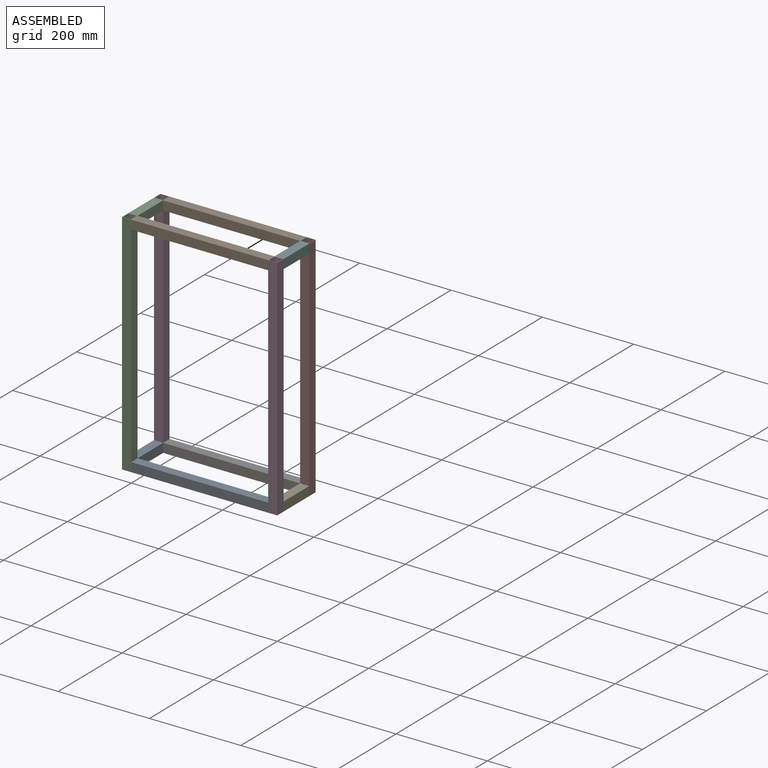
[diagram: assembled view]
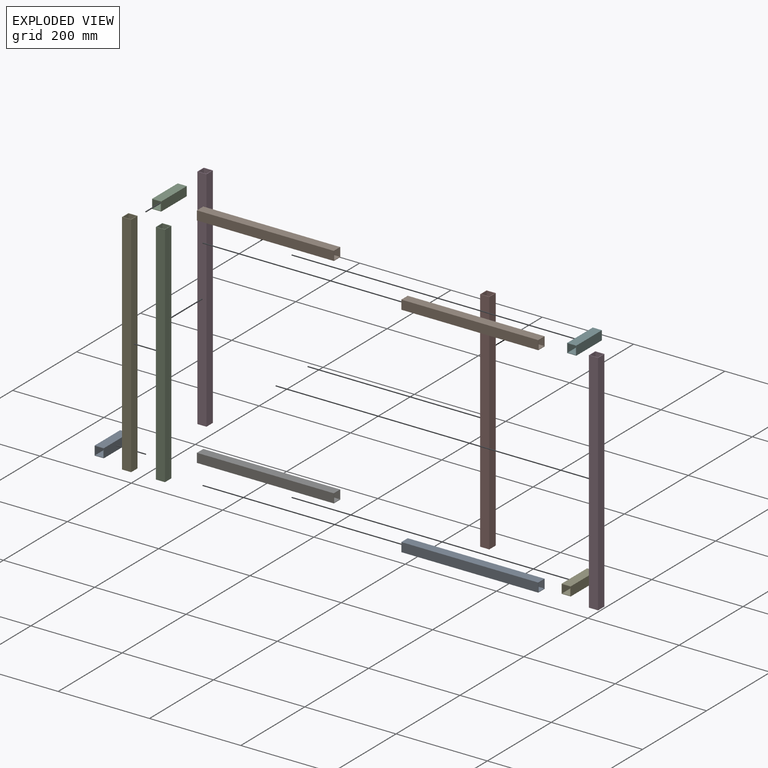
[diagram: exploded view]
GUIDED TOUR — MATED ASSEMBLY (Onshape document 2a41244f44f6a8a69559b8c5, AutoMate assembly 2a41244f44f6a8a69559b8c5_5d259f80183d942b531c8155_185a4a475fd962abfe116204_default)

This assembly has 13 components, labeled P0..P12 below (a component is one placed occurrence of a part; the same part can appear more than once), held together by 11 mates. A mate is a constraint between two components; its type names the relative motion it leaves free:
  FASTENED — locks the two components together rigidly (no relative motion).
Axis/direction vectors are unit vectors and 'through' points are millimeter coordinates, both in the assembly's world frame.

MATES
  1. FASTENED "Fastened 7": P4 <-> P3, direction (0.000, -1.000, 0.000) through (94.84, 41.28, -8.09) mm
  2. FASTENED "Fastened 8": P0 <-> P12, direction (0.000, -1.000, 0.000) through (-225.16, 41.28, -8.09) mm
  3. FASTENED "Fastened 4": P6 <-> P11, direction (-1.000, 0.000, 0.000) through (-215.16, 131.28, -8.09) mm
  4. FASTENED "Fastened 9": P5 <-> P3, direction (0.000, -1.000, 0.000) through (94.84, 41.28, 491.91) mm
  5. FASTENED "Fastened 3": P9 <-> P11, direction (-1.000, 0.000, 0.000) through (-215.16, 131.28, 491.91) mm
  6. FASTENED "Fastened 1": P1 <-> P12, direction (-1.000, 0.000, 0.000) through (-215.16, 31.28, 491.91) mm
  7. FASTENED "Fastened 5": P3 <-> P8, direction (-1.000, 0.000, 0.000) through (84.84, 31.28, -8.09) mm
  8. FASTENED "Fastened 2": P8 <-> P12, direction (-1.000, 0.000, 0.000) through (-215.16, 31.28, -8.09) mm
  9. FASTENED "Fastened 10": P10 <-> P12, direction (0.000, -1.000, 0.000) through (-225.16, 41.28, 491.91) mm
  10. FASTENED "Fastened 6": P7 <-> P6, direction (-1.000, 0.000, 0.000) through (84.84, 131.28, -8.09) mm
  11. FASTENED "Fastened 11": P10 <-> P11, direction (0.000, 1.000, 0.000) through (-225.16, 121.28, 491.91) mm

ASSEMBLY ORDER
  1. P12 — the base component [order heuristic]
  2. P2 — core [order heuristic]
  3. P10 [order verified]
  4. P11 [order verified]
  5. P9 [order verified]
  6. P6 [order verified]
  7. P1 [order verified]
  8. P8 [order verified]
  9. P3 [order verified]
  10. P4 [order verified]
  11. P7 [order verified]
  12. P5 [order verified]
  13. P0 [order verified]
Order-tag legend:
  [order verified] — this step's position reverses a verified removal order: the component was checked to insert without passing through the ones already placed.
  [order heuristic] — the first 2 components form the assembly's core: parts whose collision-free extraction could not be verified, listed in mate-graph order.

Of the 13 components, 13 carry the full construction recipe — the FeatureScript program that regenerates the part's solid from scratch; the rest are supplied as boundary geometry only.
Because this assembly has more than 12 components, the tour below covers the 12 most significant ones individually (every recipe-attached component first, then the largest by part volume), in assembly order; the remaining 1 are summarized together in a grouped section at the end.
Each toured component is shown spotlighted twice — in the assembled view, then in the exploded view, where a leader line traces a displaced component back to its assembled socket (saturated green if recipe-attached, orange if geometry-only; every other component desaturated gray) — followed by its recipe or geometry summary and the mates that hold it.
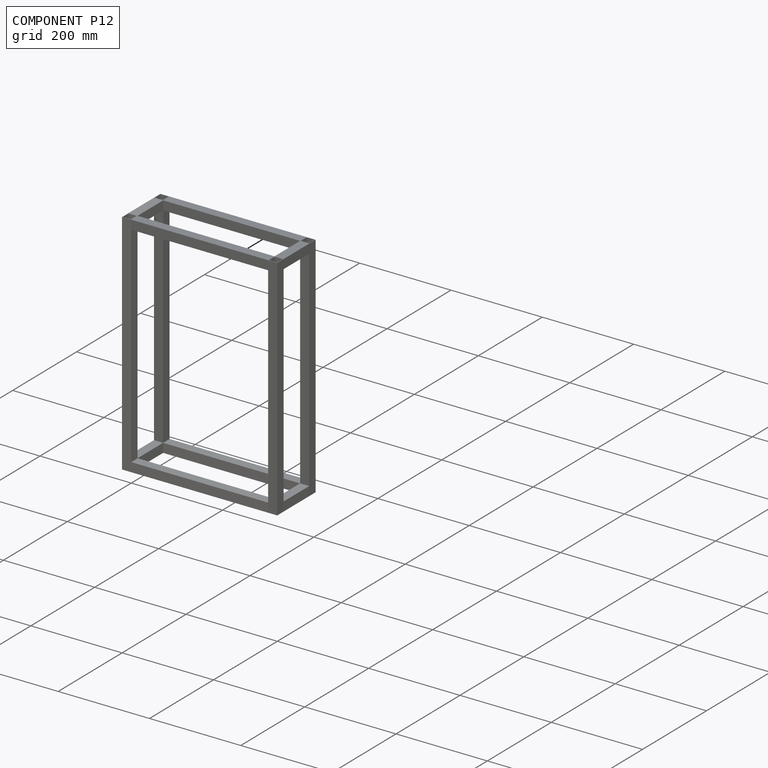
[diagram: component P12 — assembled]
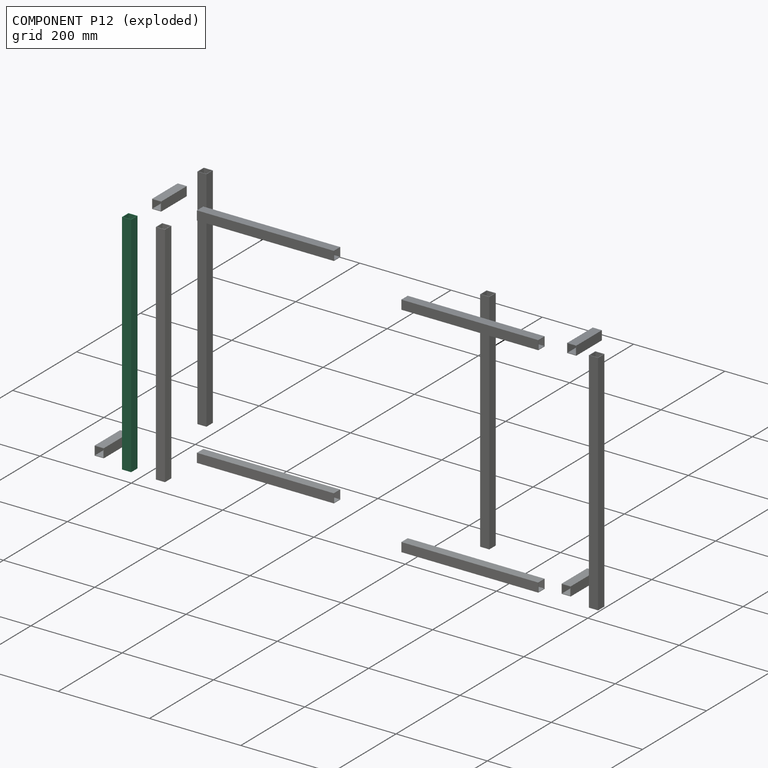
[diagram: component P12 — exploded]
COMPONENT P12 — same part as P2 (CADFS 00951037); its construction recipe is shown at P2.
Held by: FASTENED mate "Fastened 8" to P0; FASTENED mate "Fastened 1" to P1; FASTENED mate "Fastened 2" to P8; FASTENED mate "Fastened 10" to P10.
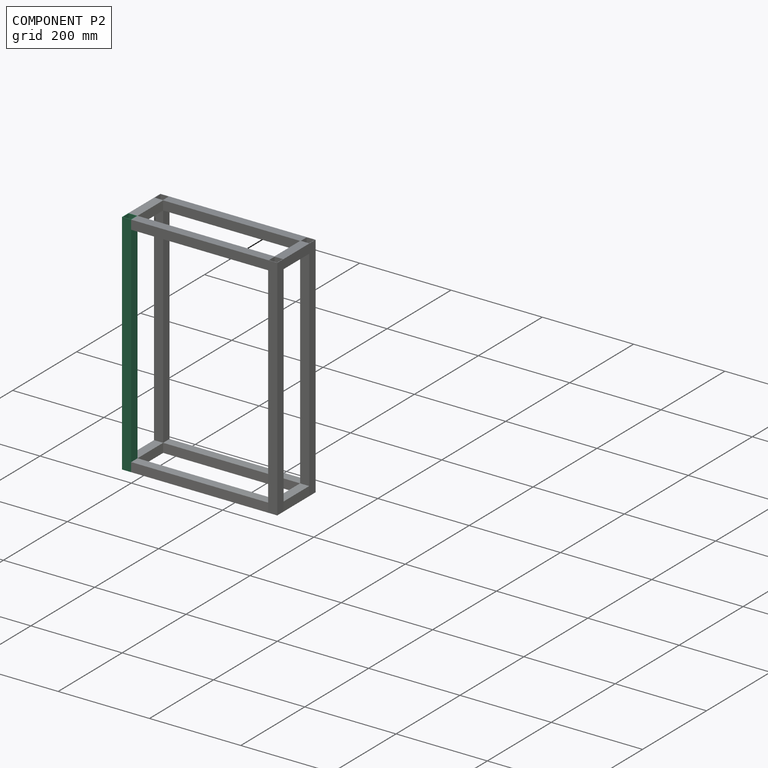
[diagram: component P2 — assembled]
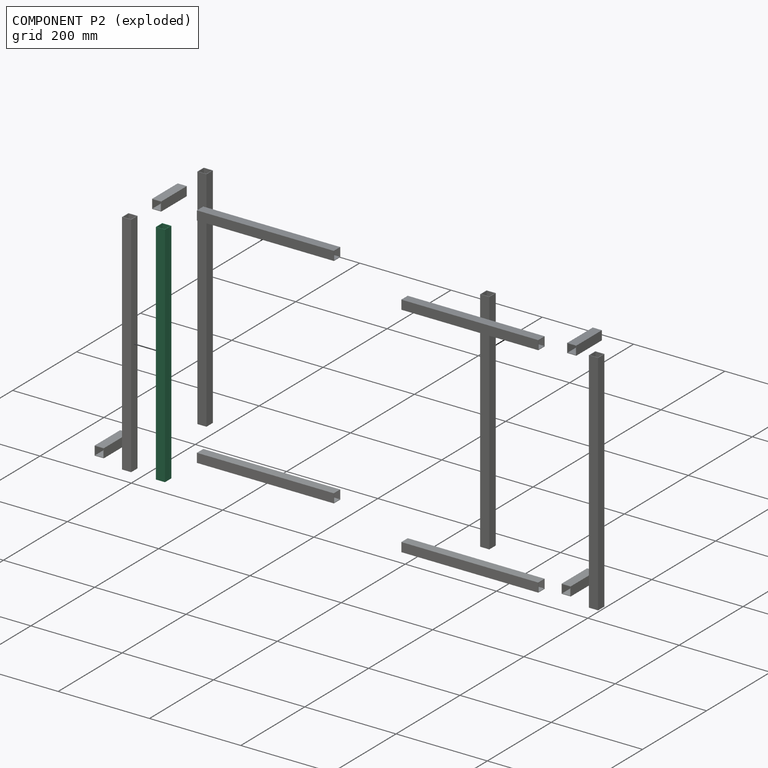
[diagram: component P2 — exploded]
COMPONENT P2 — recipe-attached (CADFS 00951037, mesh-verified: the recipe's output STEP matches this component's geometry to below the mesh-comparison resolution (tessellation chordal tolerance ~0.751 mm)).
Held by: no mates (free).
Construction recipe (FeatureScript — the CAD program that rebuilds this solid; sketch coordinates are in the units given by the * unit suffixes, e.g. mm):

FeatureScript 1511;
import(path : "onshape/std/geometry.fs", version : "1511.0");
import(path : "onshape/std/common.fs", version : "1511.0");
const mm = millimeter;
const VERTEX = EntityType.VERTEX;
const EDGE = EntityType.EDGE;
const FACE = EntityType.FACE;
const BODY = EntityType.BODY;
function v(x, y){return vector(x, y);}
function OD(order){return orderDisambiguation(order);}
function OSD(set){return originalSetDisambiguation(set);}
function TD(topology){return topologyDisambiguation(topology);}
function TDD(query){return trueDependencyDisambiguation(query);}
function sQuery(a, b, c) {return sketchEntityQuery(a, b, c);}

annotation { "Feature Type Name" : "Feature", "Feature Type Description" : "" }
export const myFeature = defineFeature(function(context is Context, id is Id, definition is map)
    precondition{}
    {
        {
            var Q0;
            Q0=qCreatedBy(makeId("Top.planeOp"),FACE);
            var sketch = newSketch(context, id + "F0", { "sketchPlane" : qUnion([Q0])});
            skLineSegment(sketch, "E0.bottom", {"start": v(10, 10) * mm, "end": v(-10, 10) * mm});
            skLineSegment(sketch, "E0.top", {"start": v(10, -10) * mm, "end": v(-10, -10) * mm});
            skLineSegment(sketch, "E0.left", {"start": v(10, 10) * mm, "end": v(10, -10) * mm});
            skLineSegment(sketch, "E0.right", {"start": v(-10, 10) * mm, "end": v(-10, -10) * mm});
            skPoint(sketch, "E0.middle", {"position": v(0, 0) * mm});
            skLineSegment(sketch, "E1.bottom", {"start": v(9, 9) * mm, "end": v(-9, 9) * mm});
            skLineSegment(sketch, "E1.top", {"start": v(9, -9) * mm, "end": v(-9, -9) * mm});
            skLineSegment(sketch, "E1.left", {"start": v(9, 9) * mm, "end": v(9, -9) * mm});
            skLineSegment(sketch, "E1.right", {"start": v(-9, 9) * mm, "end": v(-9, -9) * mm});
            skSolve(sketch);
        }
        {
            var Q0;
            Q0=makeQuery(id+"F0.imprint","IMPRINT",FACE,{"disambiguationData":[TD([[makeQuery(id+"F0.imprint","IMPRINT",EDGE,{"derivedFrom":sQuery(id+"F0.wireOp",EDGE,"E0.bottom")}),1.0]])]});
            extrude(context, id + "F1", {"entities" : qUnion([Q0]), "depth" : 500 * mm, "offsetDistance" : 25 * mm});
        }
    });
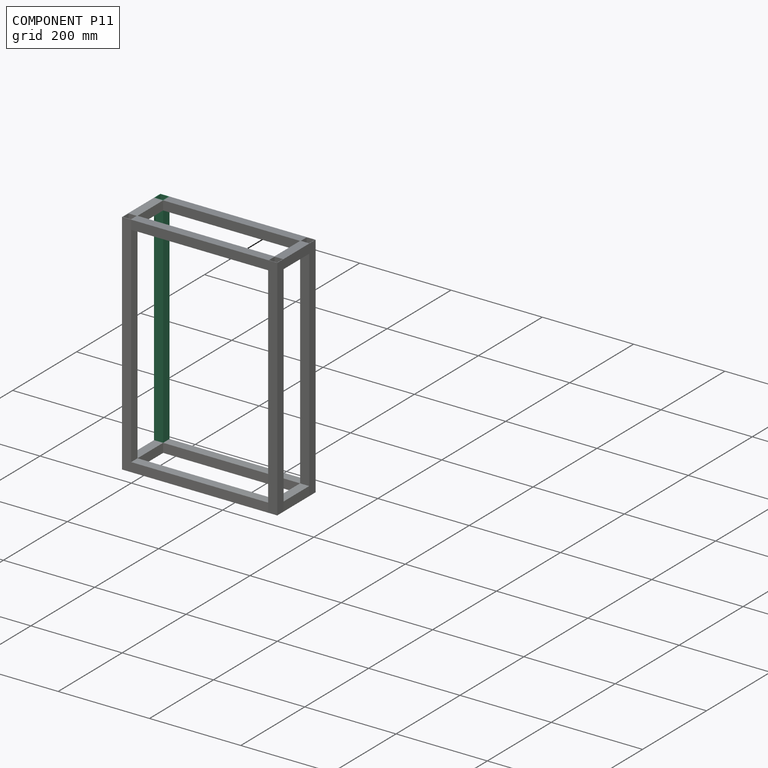
[diagram: component P11 — assembled]
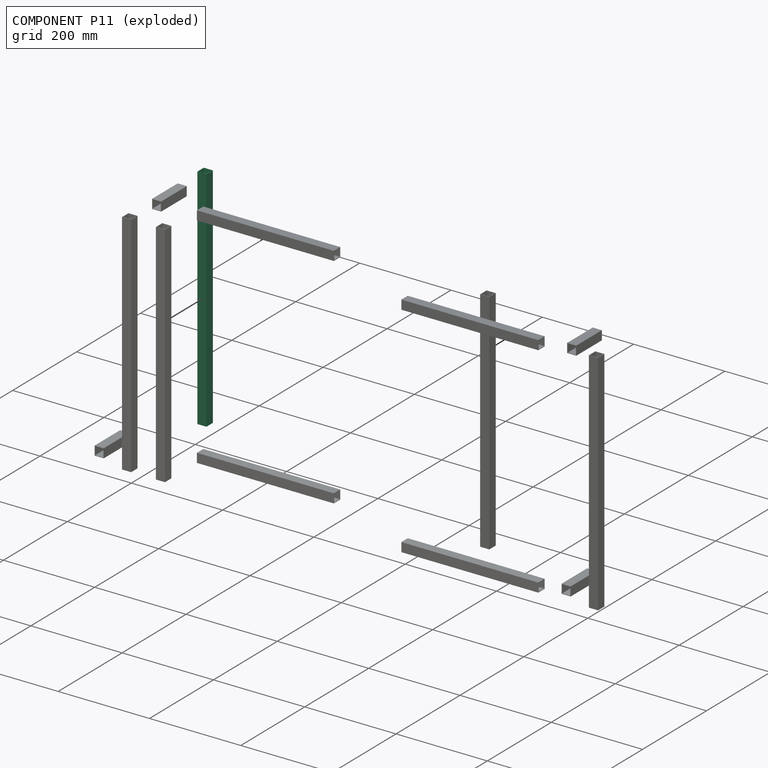
[diagram: component P11 — exploded]
COMPONENT P11 — same part as P2 (CADFS 00951037); its construction recipe is shown at P2.
Held by: FASTENED mate "Fastened 4" to P6; FASTENED mate "Fastened 3" to P9; FASTENED mate "Fastened 11" to P10.
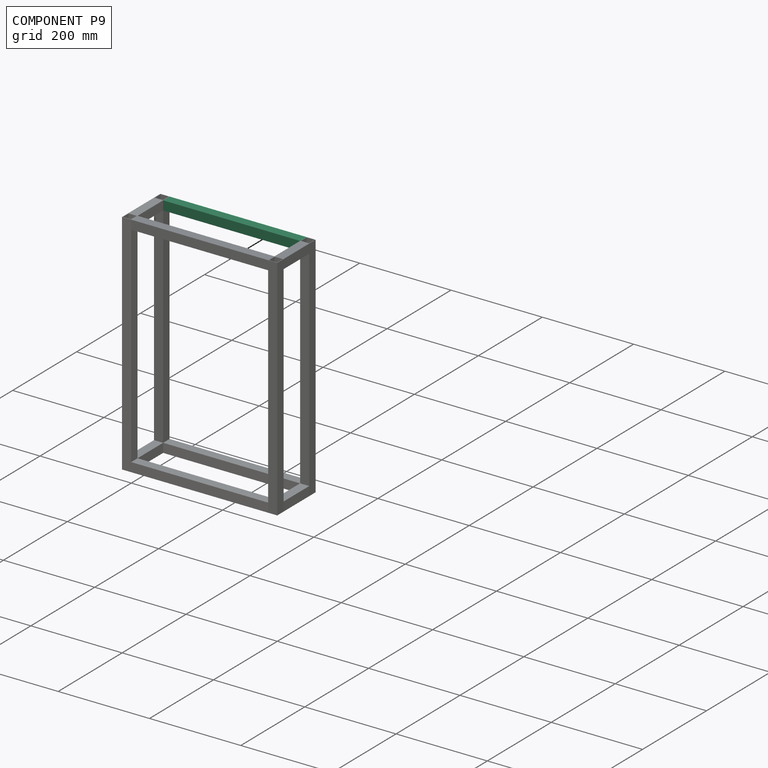
[diagram: component P9 — assembled]
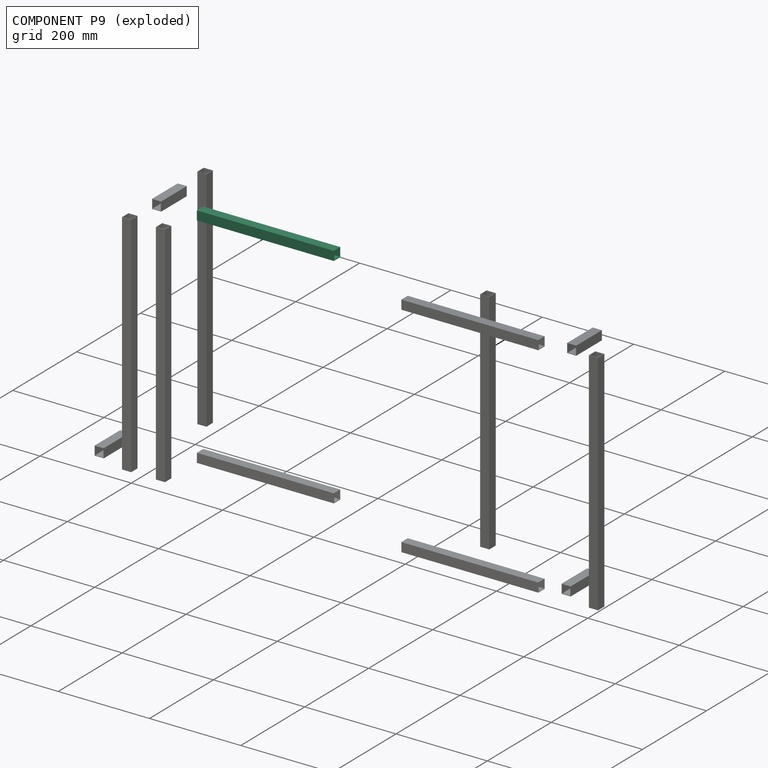
[diagram: component P9 — exploded]
COMPONENT P9 — same part as P1 (CADFS 00951039); its construction recipe is shown at P1.
Held by: FASTENED mate "Fastened 3" to P11.
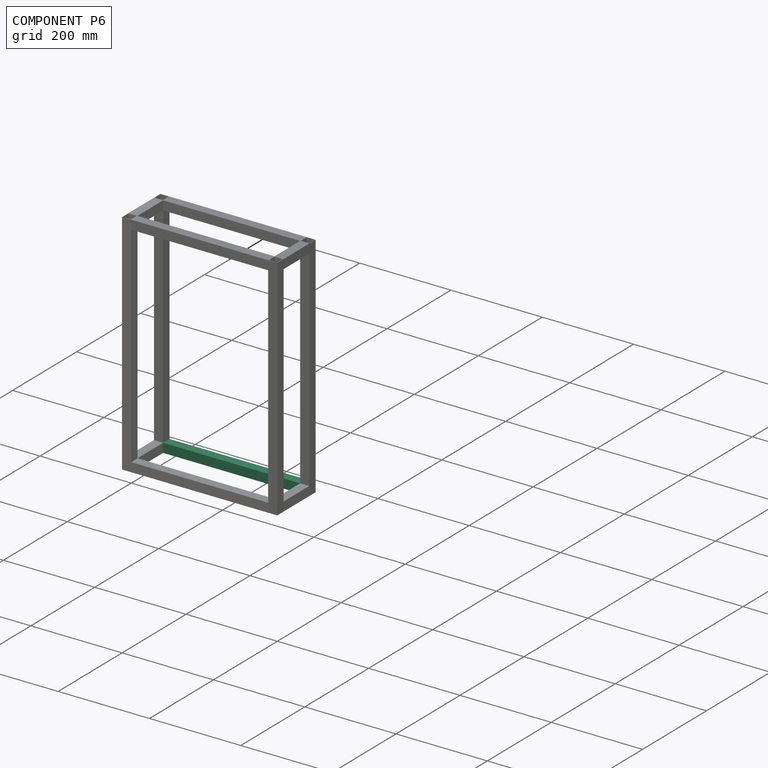
[diagram: component P6 — assembled]
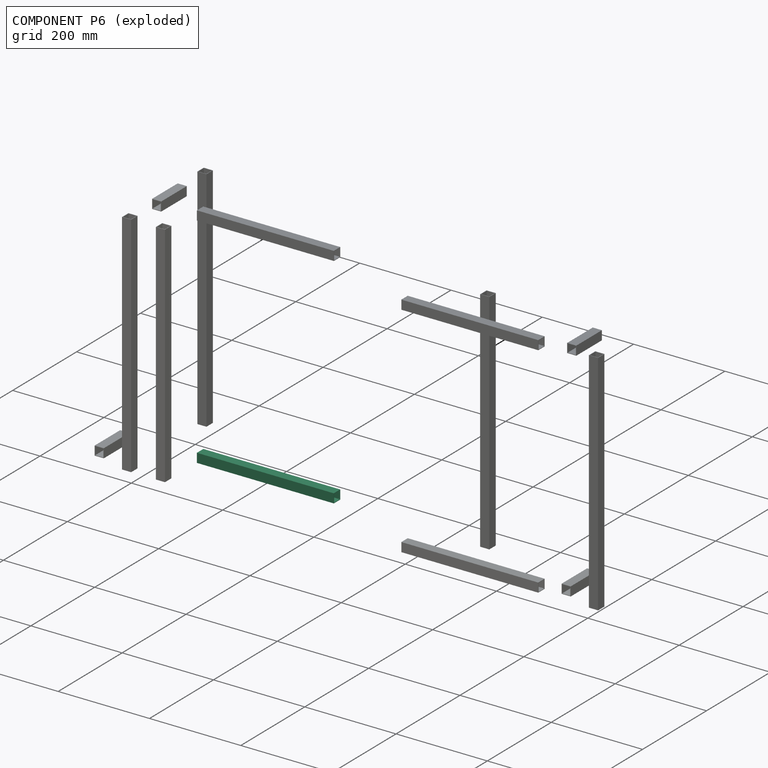
[diagram: component P6 — exploded]
COMPONENT P6 — same part as P1 (CADFS 00951039); its construction recipe is shown at P1.
Held by: FASTENED mate "Fastened 4" to P11; FASTENED mate "Fastened 6" to P7.
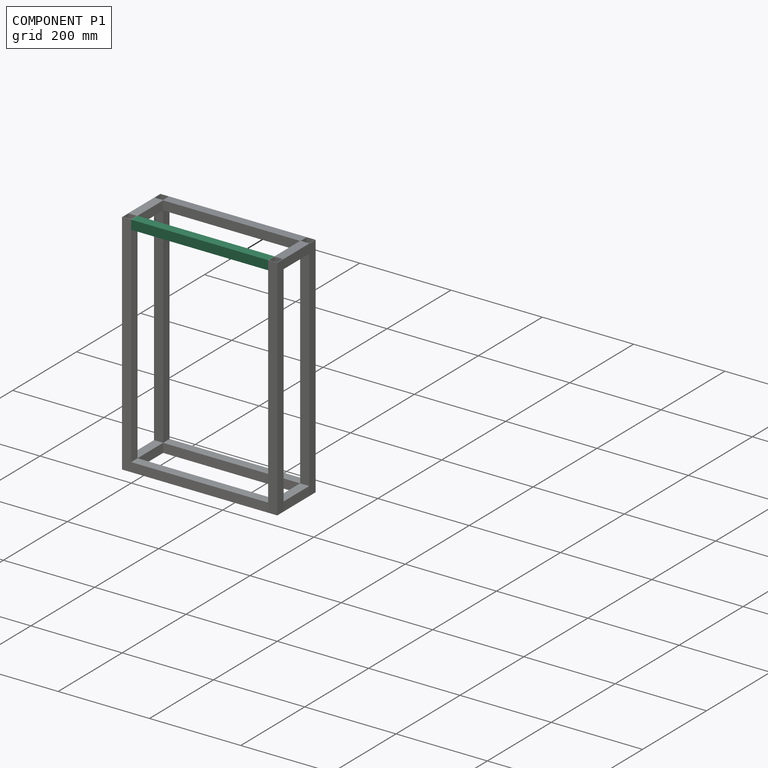
[diagram: component P1 — assembled]
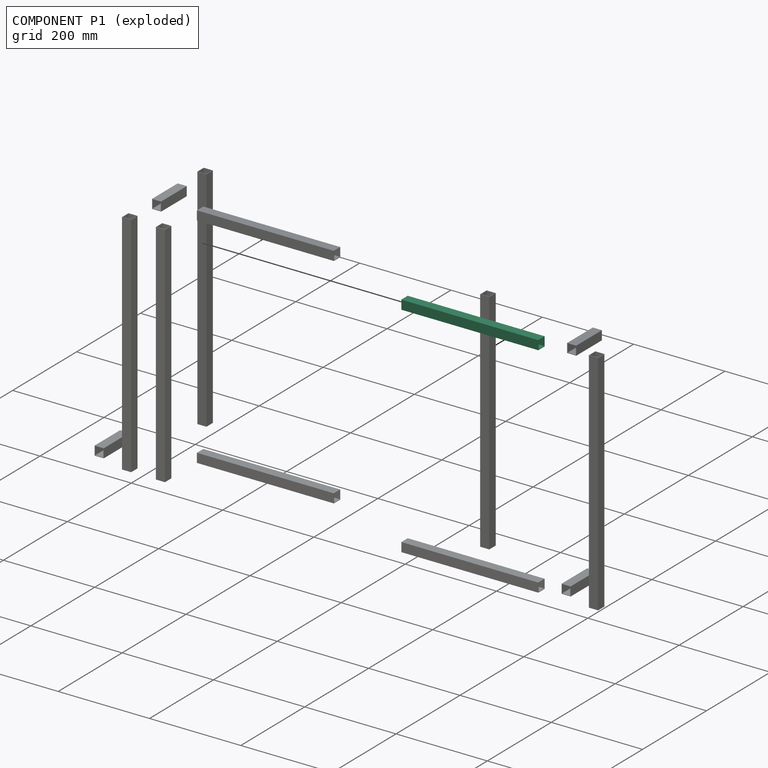
[diagram: component P1 — exploded]
COMPONENT P1 — recipe-attached (CADFS 00951039, mesh-verified: the recipe's output STEP matches this component's geometry to below the mesh-comparison resolution (tessellation chordal tolerance ~0.452 mm)).
Held by: FASTENED mate "Fastened 1" to P12.
Construction recipe (FeatureScript — the CAD program that rebuilds this solid; sketch coordinates are in the units given by the * unit suffixes, e.g. mm):

FeatureScript 1511;
import(path : "onshape/std/geometry.fs", version : "1511.0");
import(path : "onshape/std/common.fs", version : "1511.0");
const mm = millimeter;
const VERTEX = EntityType.VERTEX;
const EDGE = EntityType.EDGE;
const FACE = EntityType.FACE;
const BODY = EntityType.BODY;
function v(x, y){return vector(x, y);}
function OD(order){return orderDisambiguation(order);}
function OSD(set){return originalSetDisambiguation(set);}
function TD(topology){return topologyDisambiguation(topology);}
function TDD(query){return trueDependencyDisambiguation(query);}
function sQuery(a, b, c) {return sketchEntityQuery(a, b, c);}

annotation { "Feature Type Name" : "Feature", "Feature Type Description" : "" }
export const myFeature = defineFeature(function(context is Context, id is Id, definition is map)
    precondition{}
    {
        {
            var Q0;
            Q0=qCreatedBy(makeId("Top.planeOp"),FACE);
            var sketch = newSketch(context, id + "F0", { "sketchPlane" : qUnion([Q0])});
            skLineSegment(sketch, "E0.bottom", {"start": v(10, 10) * mm, "end": v(-10, 10) * mm});
            skLineSegment(sketch, "E0.top", {"start": v(10, -10) * mm, "end": v(-10, -10) * mm});
            skLineSegment(sketch, "E0.left", {"start": v(10, 10) * mm, "end": v(10, -10) * mm});
            skLineSegment(sketch, "E0.right", {"start": v(-10, 10) * mm, "end": v(-10, -10) * mm});
            skPoint(sketch, "E0.middle", {"position": v(0, 0) * mm});
            skLineSegment(sketch, "E1.bottom", {"start": v(9, 9) * mm, "end": v(-9, 9) * mm});
            skLineSegment(sketch, "E1.top", {"start": v(9, -9) * mm, "end": v(-9, -9) * mm});
            skLineSegment(sketch, "E1.left", {"start": v(9, 9) * mm, "end": v(9, -9) * mm});
            skLineSegment(sketch, "E1.right", {"start": v(-9, 9) * mm, "end": v(-9, -9) * mm});
            skSolve(sketch);
        }
        {
            var Q0;
            Q0=makeQuery(id+"F0.imprint","IMPRINT",FACE,{"disambiguationData":[TD([[makeQuery(id+"F0.imprint","IMPRINT",EDGE,{"derivedFrom":sQuery(id+"F0.wireOp",EDGE,"E0.bottom")}),1.0]])]});
            extrude(context, id + "F1", {"entities" : qUnion([Q0]), "depth" : 300 * mm, "offsetDistance" : 25 * mm});
        }
    });
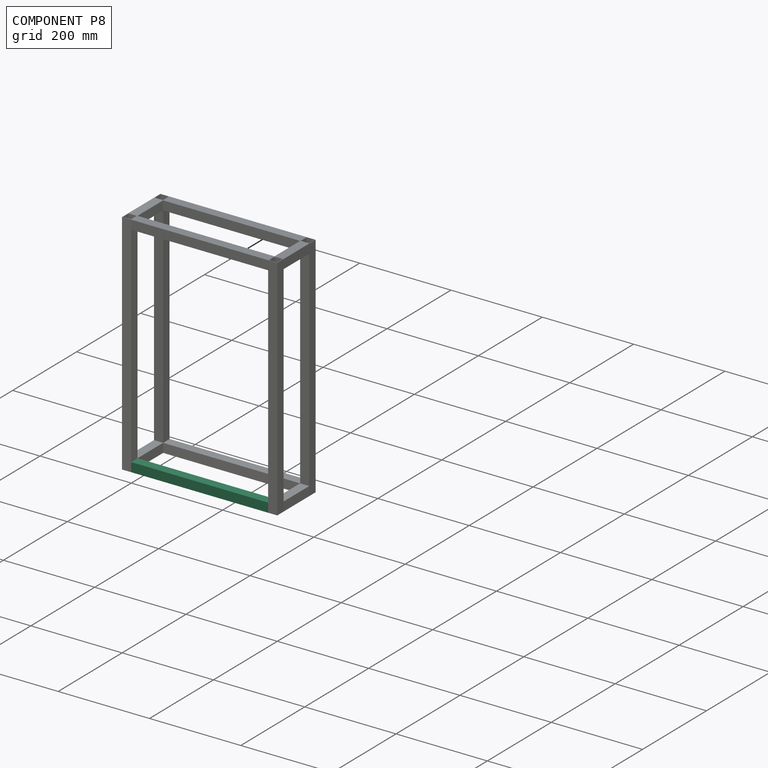
[diagram: component P8 — assembled]
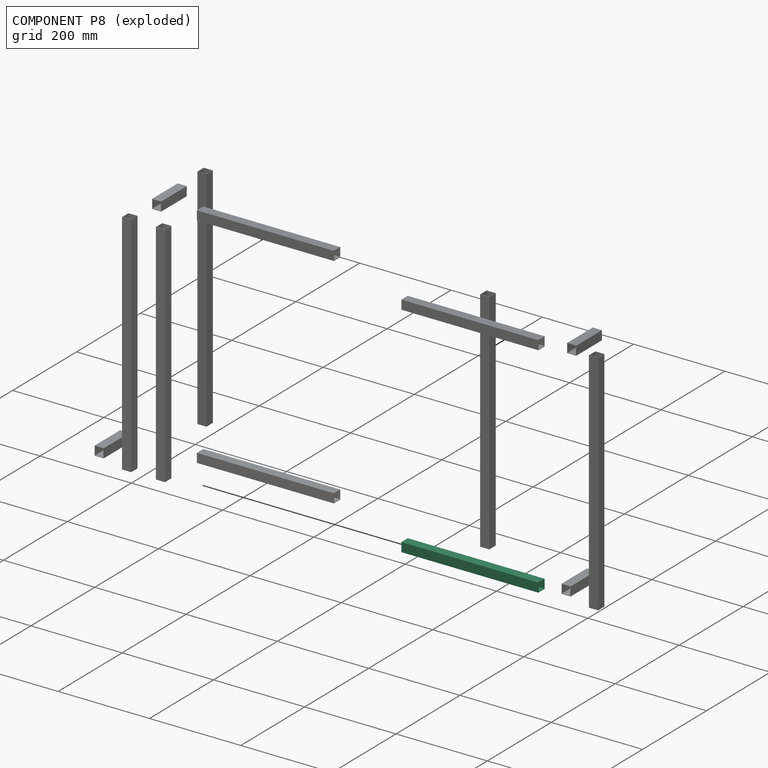
[diagram: component P8 — exploded]
COMPONENT P8 — same part as P1 (CADFS 00951039); its construction recipe is shown at P1.
Held by: FASTENED mate "Fastened 5" to P3; FASTENED mate "Fastened 2" to P12.
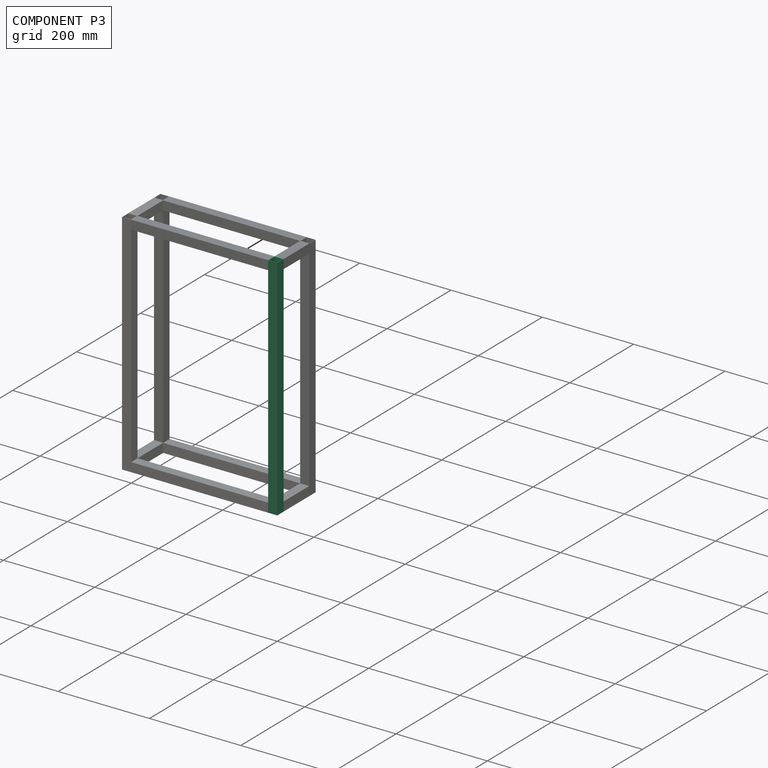
[diagram: component P3 — assembled]
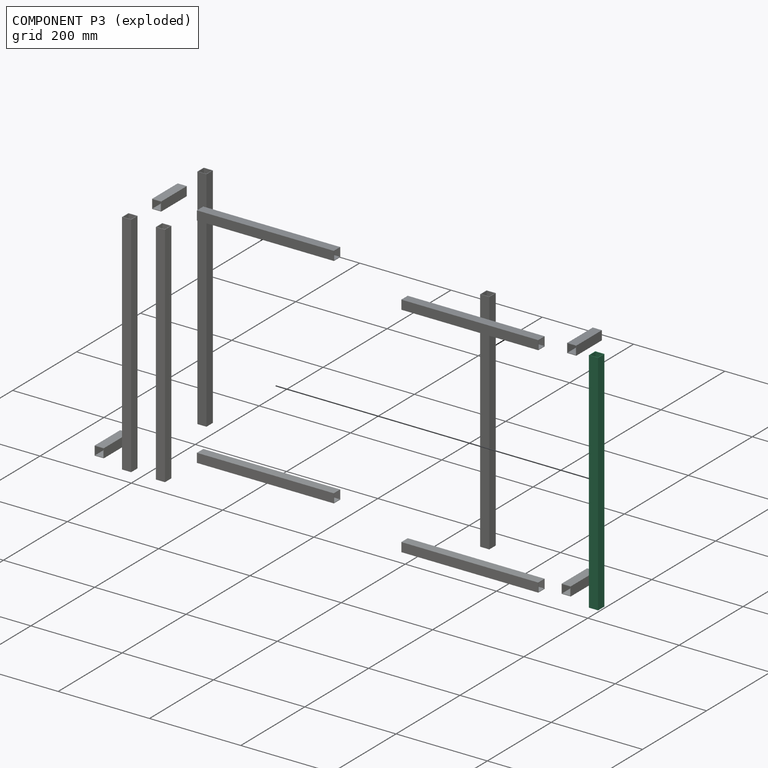
[diagram: component P3 — exploded]
COMPONENT P3 — same part as P2 (CADFS 00951037); its construction recipe is shown at P2.
Held by: FASTENED mate "Fastened 7" to P4; FASTENED mate "Fastened 9" to P5; FASTENED mate "Fastened 5" to P8.
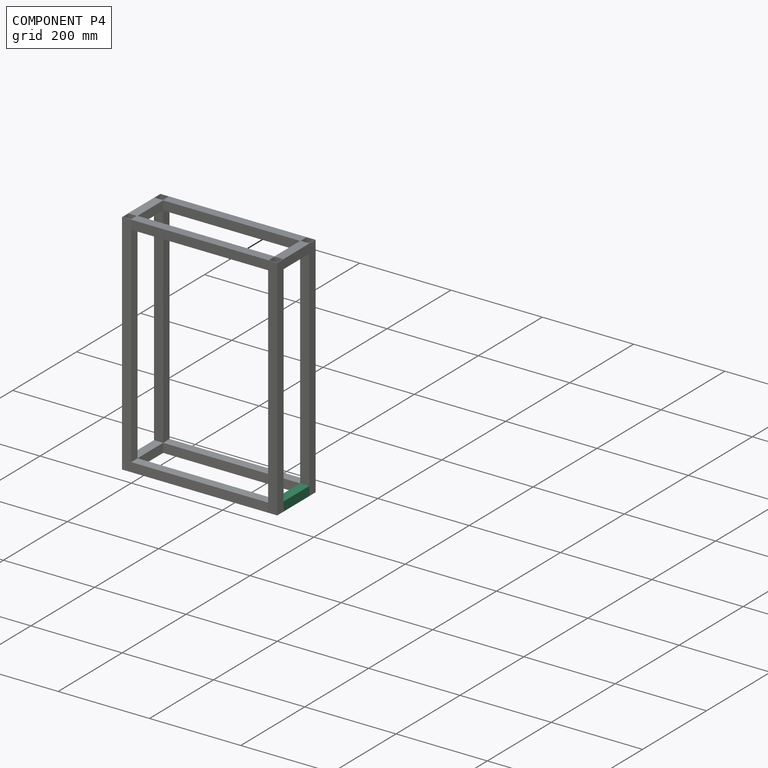
[diagram: component P4 — assembled]
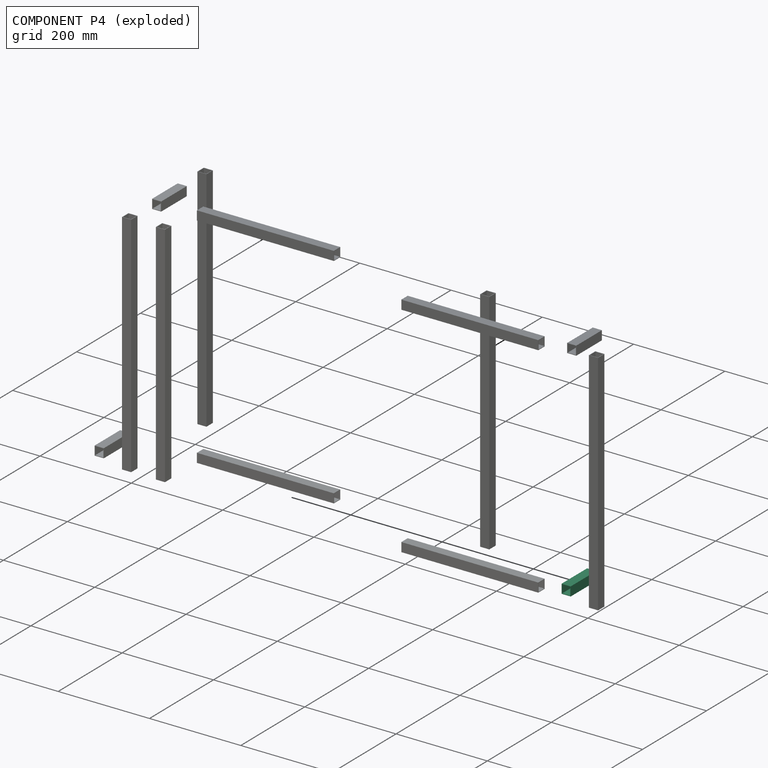
[diagram: component P4 — exploded]
COMPONENT P4 — same part as P0 (CADFS 00951038); its construction recipe is shown at P0.
Held by: FASTENED mate "Fastened 7" to P3.
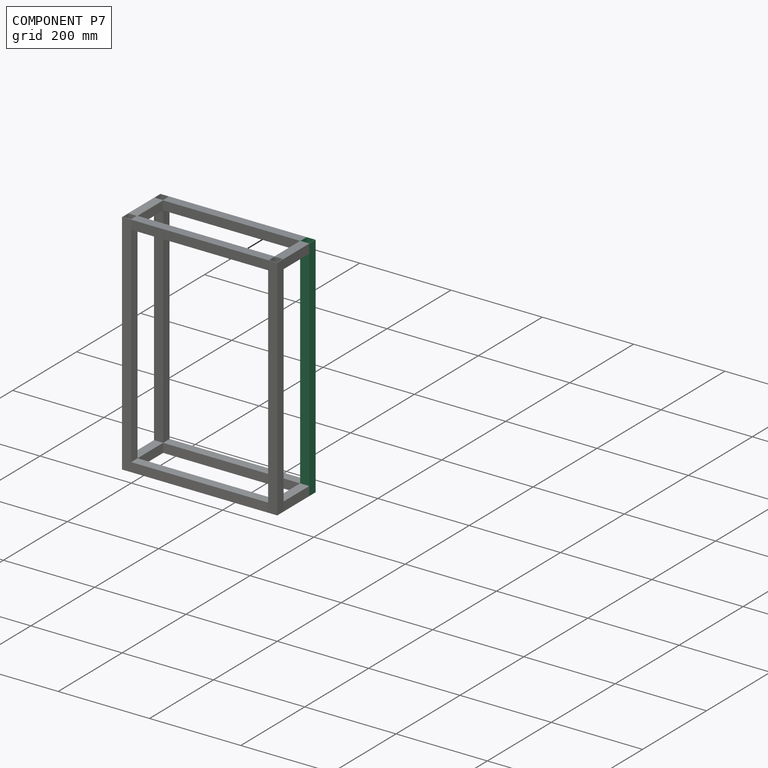
[diagram: component P7 — assembled]
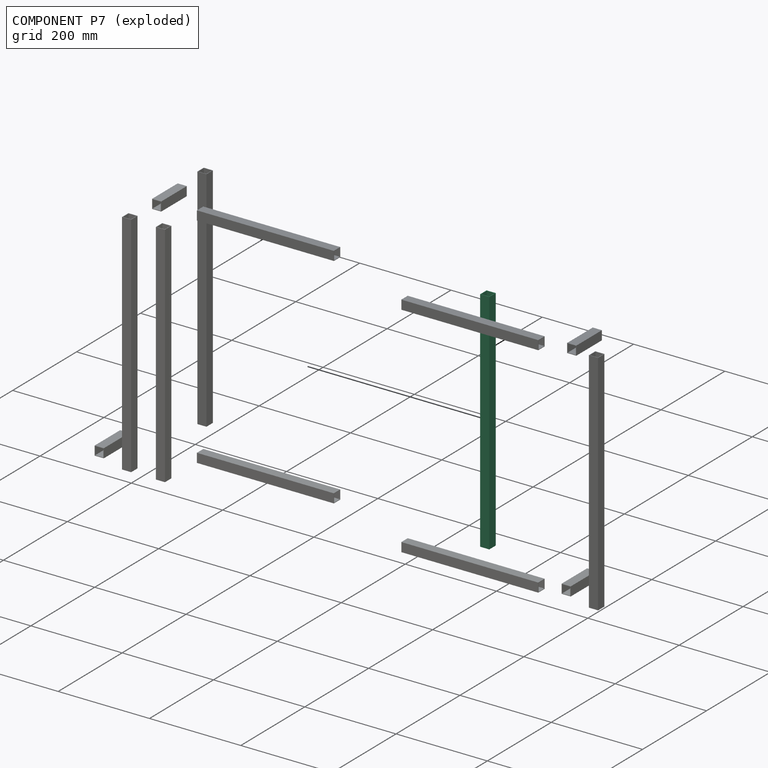
[diagram: component P7 — exploded]
COMPONENT P7 — same part as P2 (CADFS 00951037); its construction recipe is shown at P2.
Held by: FASTENED mate "Fastened 6" to P6.
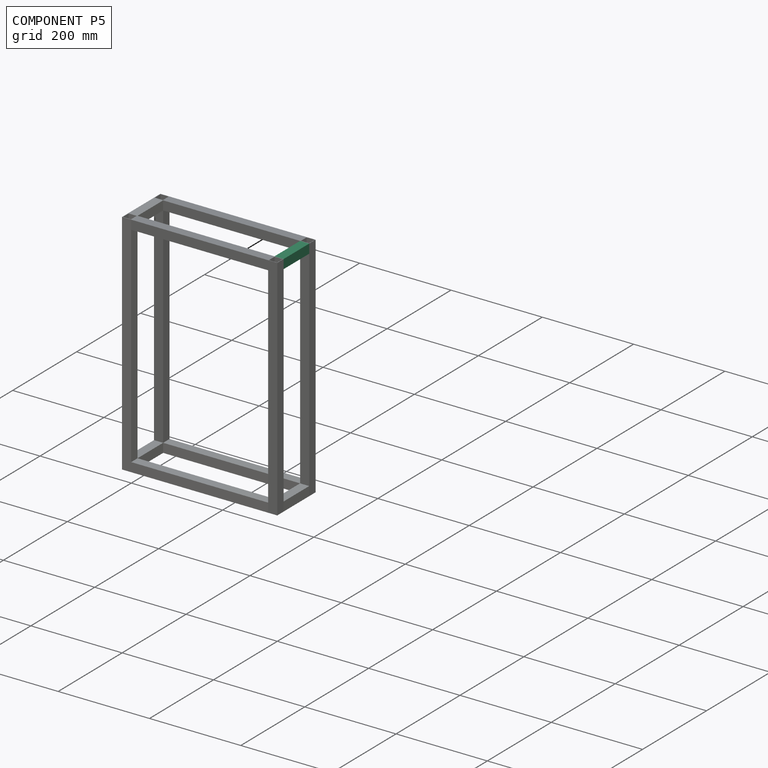
[diagram: component P5 — assembled]
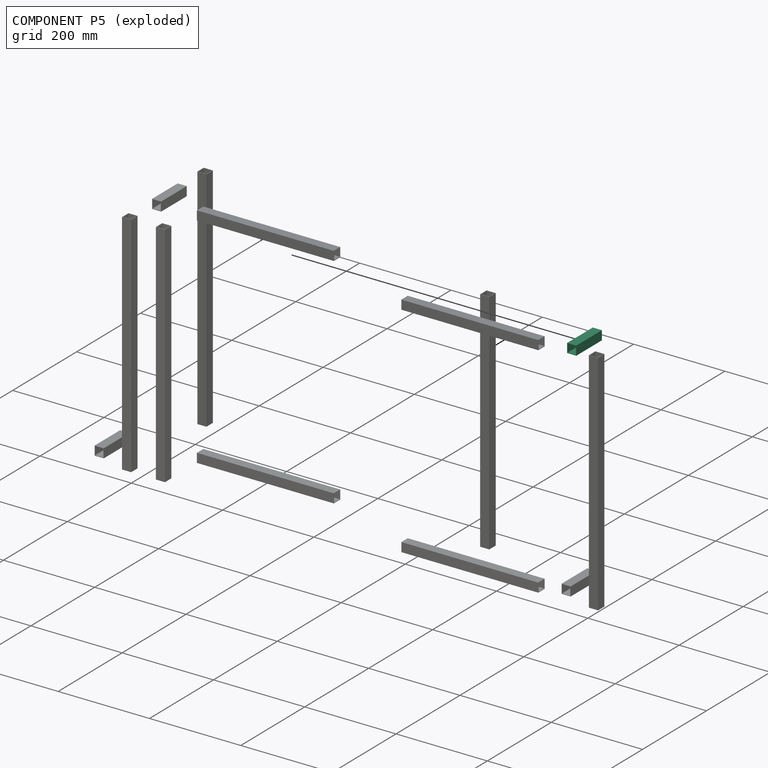
[diagram: component P5 — exploded]
COMPONENT P5 — same part as P0 (CADFS 00951038); its construction recipe is shown at P0.
Held by: FASTENED mate "Fastened 9" to P3.
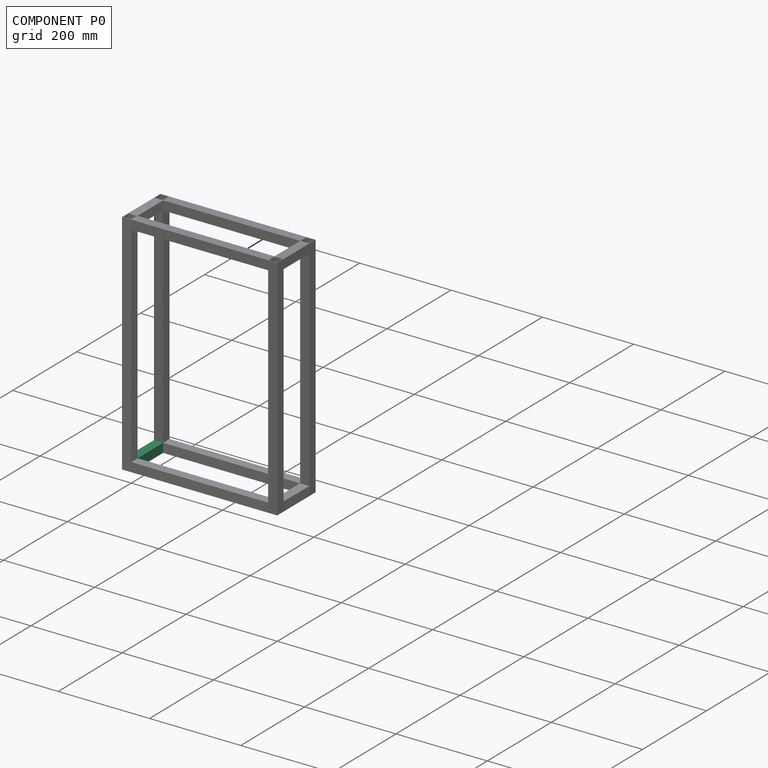
[diagram: component P0 — assembled]
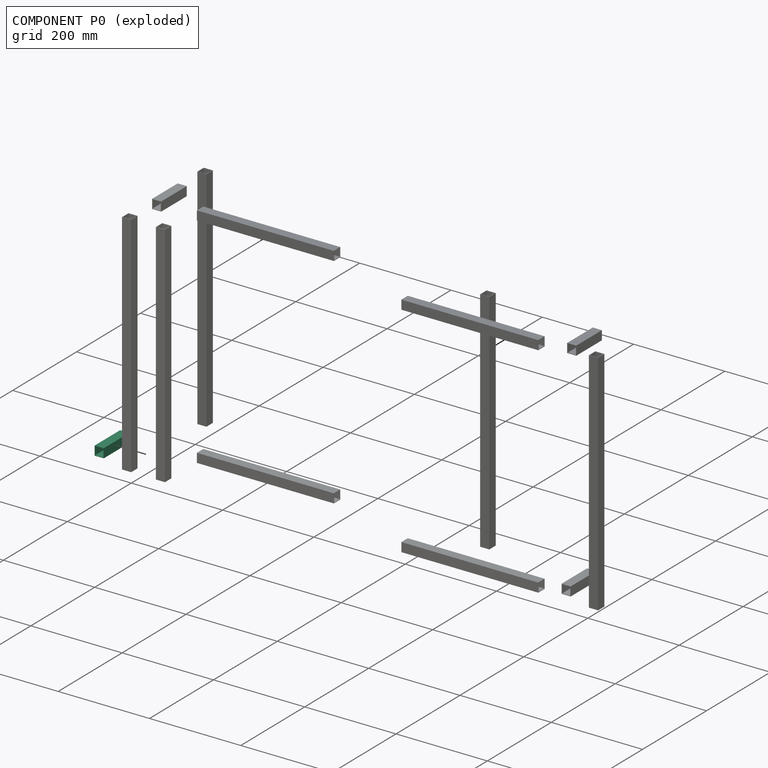
[diagram: component P0 — exploded]
COMPONENT P0 — recipe-attached (CADFS 00951038, mesh-verified: the recipe's output STEP matches this component's geometry to below the mesh-comparison resolution (tessellation chordal tolerance ~0.127 mm)).
Held by: FASTENED mate "Fastened 8" to P12.
Construction recipe (FeatureScript — the CAD program that rebuilds this solid; sketch coordinates are in the units given by the * unit suffixes, e.g. mm):

FeatureScript 1511;
import(path : "onshape/std/geometry.fs", version : "1511.0");
import(path : "onshape/std/common.fs", version : "1511.0");
const mm = millimeter;
const VERTEX = EntityType.VERTEX;
const EDGE = EntityType.EDGE;
const FACE = EntityType.FACE;
const BODY = EntityType.BODY;
function v(x, y){return vector(x, y);}
function OD(order){return orderDisambiguation(order);}
function OSD(set){return originalSetDisambiguation(set);}
function TD(topology){return topologyDisambiguation(topology);}
function TDD(query){return trueDependencyDisambiguation(query);}
function sQuery(a, b, c) {return sketchEntityQuery(a, b, c);}

annotation { "Feature Type Name" : "Feature", "Feature Type Description" : "" }
export const myFeature = defineFeature(function(context is Context, id is Id, definition is map)
    precondition{}
    {
        {
            var Q0;
            Q0=qCreatedBy(makeId("Top.planeOp"),FACE);
            var sketch = newSketch(context, id + "F0", { "sketchPlane" : qUnion([Q0])});
            skLineSegment(sketch, "E0.bottom", {"start": v(10, 10) * mm, "end": v(-10, 10) * mm});
            skLineSegment(sketch, "E0.top", {"start": v(10, -10) * mm, "end": v(-10, -10) * mm});
            skLineSegment(sketch, "E0.left", {"start": v(10, 10) * mm, "end": v(10, -10) * mm});
            skLineSegment(sketch, "E0.right", {"start": v(-10, 10) * mm, "end": v(-10, -10) * mm});
            skPoint(sketch, "E0.middle", {"position": v(0, 0) * mm});
            skLineSegment(sketch, "E1.bottom", {"start": v(9, 9) * mm, "end": v(-9, 9) * mm});
            skLineSegment(sketch, "E1.top", {"start": v(9, -9) * mm, "end": v(-9, -9) * mm});
            skLineSegment(sketch, "E1.left", {"start": v(9, 9) * mm, "end": v(9, -9) * mm});
            skLineSegment(sketch, "E1.right", {"start": v(-9, 9) * mm, "end": v(-9, -9) * mm});
            skSolve(sketch);
        }
        {
            var Q0;
            Q0=makeQuery(id+"F0.imprint","IMPRINT",FACE,{"disambiguationData":[TD([[makeQuery(id+"F0.imprint","IMPRINT",EDGE,{"derivedFrom":sQuery(id+"F0.wireOp",EDGE,"E0.bottom")}),1.0]])]});
            extrude(context, id + "F1", {"entities" : qUnion([Q0]), "depth" : 80 * mm, "offsetDistance" : 25 * mm});
        }
    });
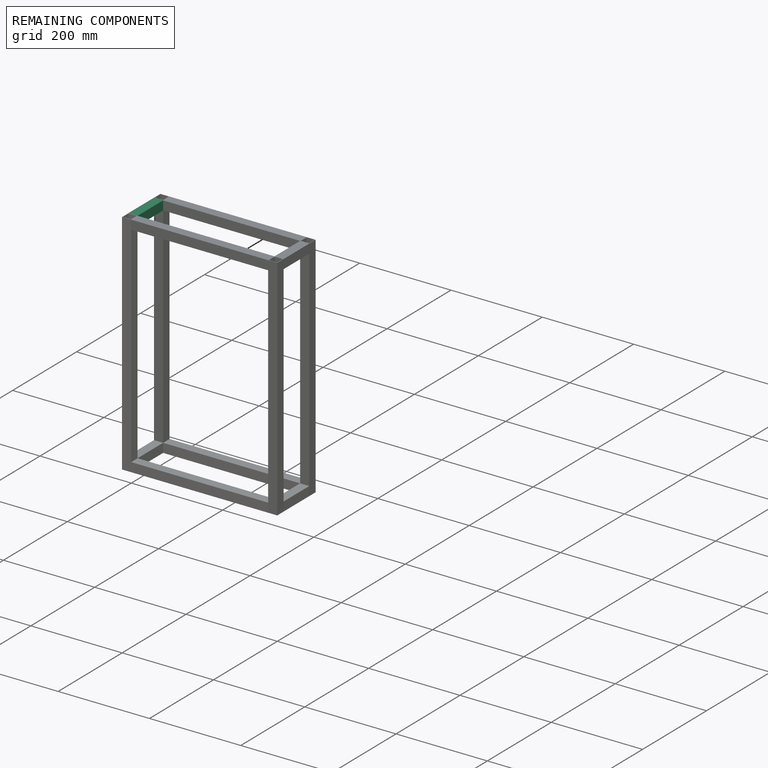
[diagram: remaining components — assembled]
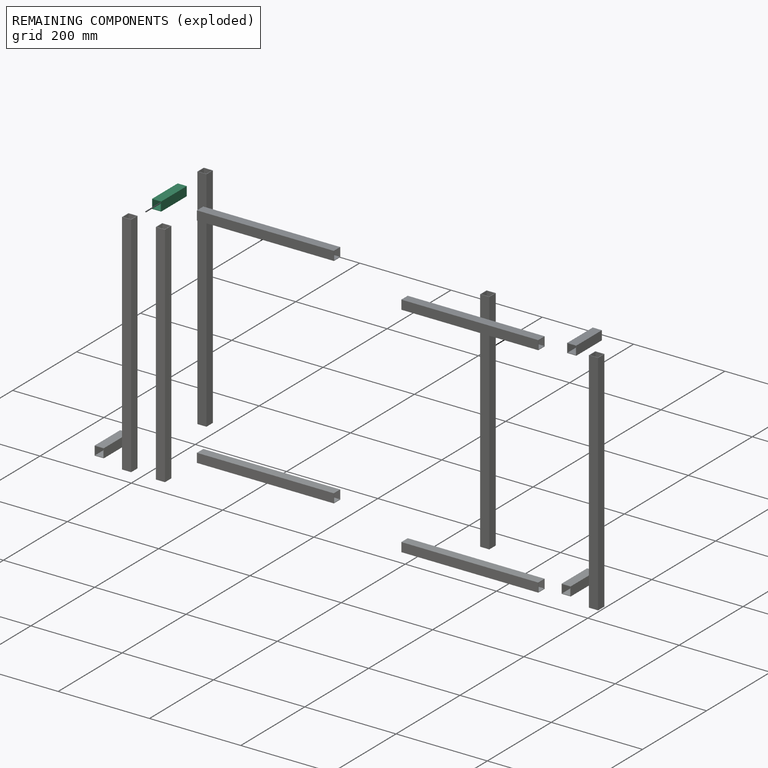
[diagram: remaining components — exploded]
REMAINING COMPONENTS (grouped) — the 1 components below fall outside the per-component tour by the significance rule stated above; both spotlight views highlight the whole group.
  P10: bounding box 80.0 x 20.0 x 20.0 mm, volume 6080 mm^3. Recipe-attached (CADFS 00951038; recipe not printed under the significance rule). Held by: FASTENED mate "Fastened 10" to P12; FASTENED mate "Fastened 11" to P11.
PROVENANCE & LICENSES
Assembly (occurrences, transforms, mates, per-part STEP geometry): AutoMate dataset, Zenodo record 7776208, CC0.
Construction recipes: CADFS (HuggingFace VladPyatov/CADFS, CC-BY-4.0, layered over the ABC dataset), FeatureScript reconstruction programs keyed by ABC model id.
Join: ABC meta listings map ABC model id -> Onshape documentId; within a shared document, parts are matched by geometric signature (bounding-box dims + volume at 0.1% relative tolerance, exact B-rep face/solid counts).
Verification: 13 of this assembly's 13 components carry a recipe attachment, and every attachment is mesh-verified: the CADFS STEP and the AutoMate member STEP were compared as meshes in their shared local frame (symmetric sampled-point-to-mesh distance); worst across the 13 attachments: below the mesh-comparison resolution (tessellation chordal tolerance ~0.751 mm) on a 501 mm part.
Renders: orthographic iso camera (az 35 / el 25); the floor grid conveys scale (grid pitch printed in each image; no ruler). In the exploded view each component is displaced by its stored offset vector: the offsets alone carry the explosion direction (mate normal/axis signs are not orientation cues and do not encode it), and separation distances are assigned per mate-chain, not proportionally to assembly-order depth.
